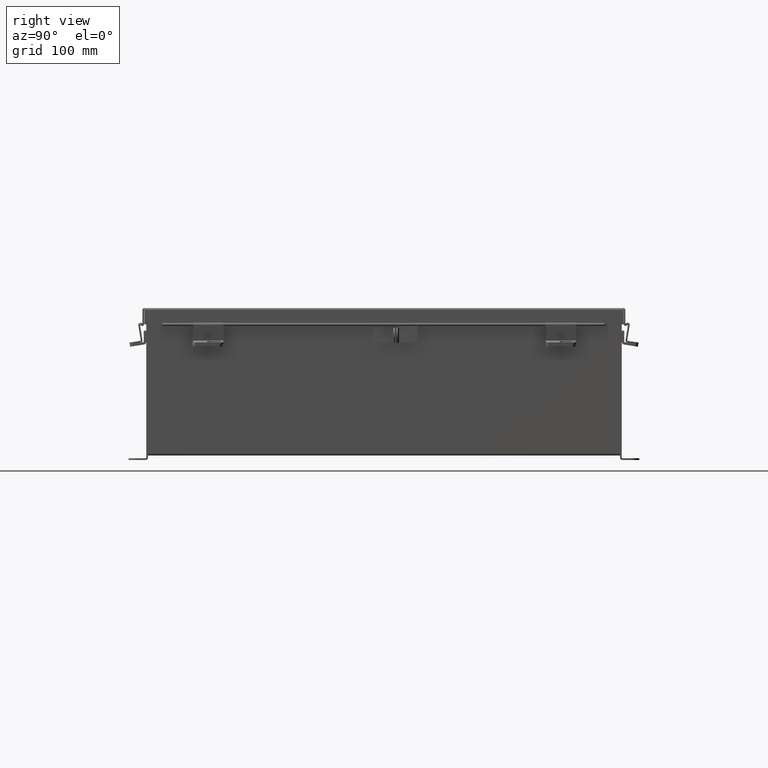
[diagram: clean part render]
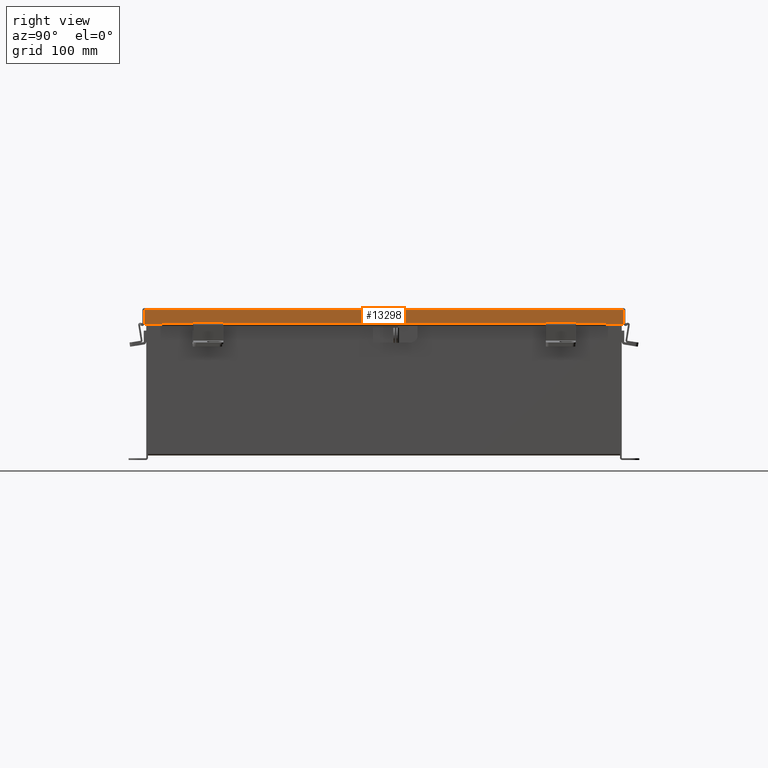
[diagram: same view with one face highlighted and labeled with its STEP entity id]
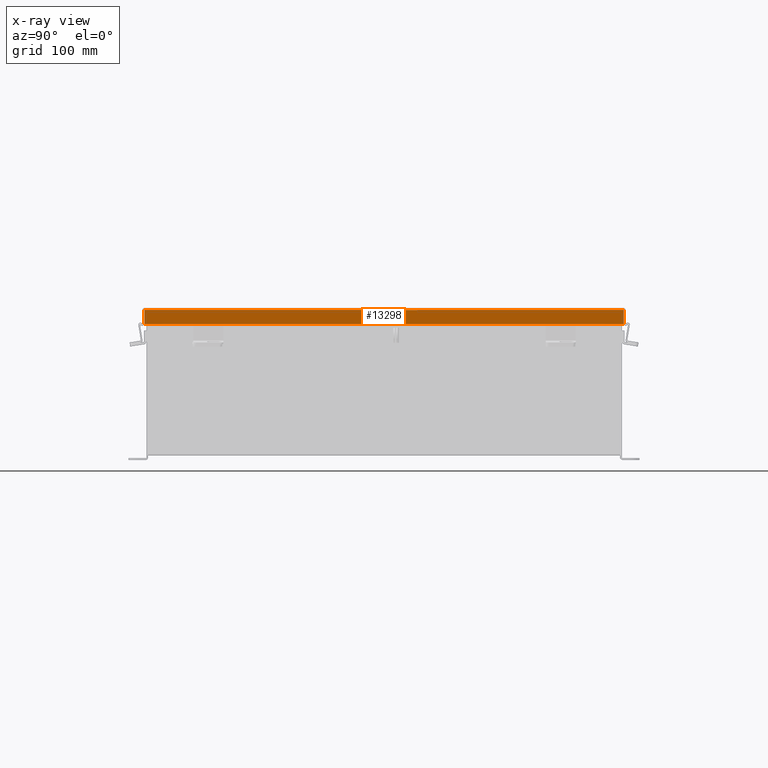
[diagram: x-ray of the same camera — body ghosted, the highlighted face saturated]
A machine part, right view. The second image highlights one B-rep face of the part: STEP entity #13298.
The next image is the same camera in x-ray: the body ghosted, the highlighted face saturated — about 0% of this face is hidden behind the body in this view.
In plain terms, the highlighted planar face has unit normal (-1, 0, -0).
Its self-contained STEP definition (entity closure, byte-faithful):
#420 = VERTEX_POINT ( 'NONE', #13137 ) ;
#1208 = VERTEX_POINT ( 'NONE', #22438 ) ;
#1387 = VECTOR ( 'NONE', #1497, 39.37007874015748100 ) ;
#1497 = DIRECTION ( 'NONE',  ( -1.401985044024173000E-013, -7.009925220120844800E-014, 1.000000000000000000 ) ) ;
#1678 = VECTOR ( 'NONE', #13972, 39.37007874015748100 ) ;
#1912 = CARTESIAN_POINT ( 'NONE',  ( -10.15625000000003000, 10.07447893218811800, 0.0000000000000000000 ) ) ;
#1918 = DIRECTION ( 'NONE',  ( -3.166671605124525800E-030, -1.000000000000000000, -1.853823127269377700E-029 ) ) ;
#2104 = PLANE ( 'NONE',  #15164 ) ;
#3303 = DIRECTION ( 'NONE',  ( 3.166671605124525800E-030, 1.000000000000000000, 1.853823127269377700E-029 ) ) ;
#3733 = CARTESIAN_POINT ( 'NONE',  ( -10.15625000000003400, -9.324478932188133800, 0.6123000000000005100 ) ) ;
#3745 = VERTEX_POINT ( 'NONE', #18820 ) ;
#4094 = VECTOR ( 'NONE', #3303, 39.37007874015748100 ) ;
#4202 = ORIENTED_EDGE ( 'NONE', *, *, #13214, .F. ) ;
#5016 = EDGE_CURVE ( 'NONE', #1208, #420, #17986, .T. ) ;
#5170 = VERTEX_POINT ( 'NONE', #17865 ) ;
#5282 = CARTESIAN_POINT ( 'NONE',  ( -10.15625000000003000, -10.07447893218814800, 0.01300000000000010700 ) ) ;
#5339 = DIRECTION ( 'NONE',  ( -3.569293475308537100E-015, 1.846427556282924300E-029, 1.000000000000000000 ) ) ;
#5529 = DIRECTION ( 'NONE',  ( 1.000000000000000000, 3.392644796219358600E-030, 3.569293475308537100E-015 ) ) ;
#5638 = VECTOR ( 'NONE', #5339, 39.37007874015748100 ) ;
#5728 = VECTOR ( 'NONE', #1918, 39.37007874015748100 ) ;
#5880 = CARTESIAN_POINT ( 'NONE',  ( -10.15625000000003400, -9.324478932188130300, 0.5967115427318793200 ) ) ;
#6111 = FACE_OUTER_BOUND ( 'NONE', #13912, .T. ) ;
#6167 = LINE ( 'NONE', #1912, #5638 ) ;
#7038 = EDGE_CURVE ( 'NONE', #3745, #17805, #21184, .T. ) ;
#7613 = VERTEX_POINT ( 'NONE', #5880 ) ;
#7762 = CARTESIAN_POINT ( 'NONE',  ( -10.15625000000003200, 0.0000000000000000000, 0.6123000000000005100 ) ) ;
#7808 = ORIENTED_EDGE ( 'NONE', *, *, #5016, .T. ) ;
#8040 = CARTESIAN_POINT ( 'NONE',  ( -10.15625000000003400, 9.324478932188135600, 0.5967115427318793200 ) ) ;
#8380 = VERTEX_POINT ( 'NONE', #5282 ) ;
#8701 = CARTESIAN_POINT ( 'NONE',  ( -10.15625000000003000, -10.07447893218814800, -3.606039351636827200E-014 ) ) ;
#9473 = EDGE_CURVE ( 'NONE', #8380, #3745, #15475, .T. ) ;
#9533 = DIRECTION ( 'NONE',  ( 3.166671605124525800E-030, 1.000000000000000000, 1.853823127269377700E-029 ) ) ;
#9799 = EDGE_CURVE ( 'NONE', #7613, #17805, #15198, .T. ) ;
#10890 = LINE ( 'NONE', #14002, #5728 ) ;
#10938 = ORIENTED_EDGE ( 'NONE', *, *, #7038, .T. ) ;
#11102 = ORIENTED_EDGE ( 'NONE', *, *, #11118, .F. ) ;
#11118 = EDGE_CURVE ( 'NONE', #5170, #420, #6167, .T. ) ;
#11828 = LINE ( 'NONE', #19205, #20527 ) ;
#12450 = CARTESIAN_POINT ( 'NONE',  ( -10.15625000000003200, 0.0000000000000000000, -3.606039351636827200E-014 ) ) ;
#13010 = ORIENTED_EDGE ( 'NONE', *, *, #15478, .F. ) ;
#13137 = CARTESIAN_POINT ( 'NONE',  ( -10.15625000000003400, 10.07447893218811800, 0.6122999999999994000 ) ) ;
#13214 = EDGE_CURVE ( 'NONE', #1208, #19880, #11828, .T. ) ;
#13298 = ADVANCED_FACE ( 'NONE', ( #6111 ), #2104, .F. ) ;
#13309 = ORIENTED_EDGE ( 'NONE', *, *, #14969, .F. ) ;
#13831 = ORIENTED_EDGE ( 'NONE', *, *, #9473, .T. ) ;
#13912 = EDGE_LOOP ( 'NONE', ( #4202, #7808, #11102, #13010, #13831, #10938, #16477, #13309 ) ) ;
#13972 = DIRECTION ( 'NONE',  ( -3.569293475308537100E-015, 1.846427556282924300E-029, 1.000000000000000000 ) ) ;
#14002 = CARTESIAN_POINT ( 'NONE',  ( -10.15625000000003000, 9.324478932188135600, 0.5967115427318793200 ) ) ;
#14409 = LINE ( 'NONE', #17076, #4094 ) ;
#14969 = EDGE_CURVE ( 'NONE', #19880, #7613, #10890, .T. ) ;
#15164 = AXIS2_PLACEMENT_3D ( 'NONE', #12450, #5529, #17669 ) ;
#15198 = LINE ( 'NONE', #22221, #1387 ) ;
#15475 = LINE ( 'NONE', #8701, #1678 ) ;
#15478 = EDGE_CURVE ( 'NONE', #8380, #5170, #14409, .T. ) ;
#16477 = ORIENTED_EDGE ( 'NONE', *, *, #9799, .F. ) ;
#16528 = CARTESIAN_POINT ( 'NONE',  ( -10.15625000000003200, 0.0000000000000000000, 0.6123000000000005100 ) ) ;
#16541 = VECTOR ( 'NONE', #9533, 39.37007874015748100 ) ;
#17076 = CARTESIAN_POINT ( 'NONE',  ( -10.15625000000003000, 10.15624999999998400, 0.01300000000000010700 ) ) ;
#17424 = VECTOR ( 'NONE', #21855, 39.37007874015748100 ) ;
#17669 = DIRECTION ( 'NONE',  ( 3.569293475308537100E-015, -1.846427556282924000E-029, -1.000000000000000000 ) ) ;
#17805 = VERTEX_POINT ( 'NONE', #3733 ) ;
#17865 = CARTESIAN_POINT ( 'NONE',  ( -10.15625000000003000, 10.07447893218811800, 0.01300000000000010700 ) ) ;
#17986 = LINE ( 'NONE', #16528, #17424 ) ;
#18820 = CARTESIAN_POINT ( 'NONE',  ( -10.15625000000003400, -10.07447893218814800, 0.6123000000000005100 ) ) ;
#19205 = CARTESIAN_POINT ( 'NONE',  ( -10.15625000000003400, 9.324478932188135600, 0.6122999999999994000 ) ) ;
#19880 = VERTEX_POINT ( 'NONE', #8040 ) ;
#20527 = VECTOR ( 'NONE', #20940, 39.37007874015748100 ) ;
#20940 = DIRECTION ( 'NONE',  ( 1.401985044024228000E-013, 7.009925220121121200E-014, -1.000000000000000000 ) ) ;
#21184 = LINE ( 'NONE', #7762, #16541 ) ;
#21855 = DIRECTION ( 'NONE',  ( 3.166671605124525800E-030, 1.000000000000000000, 1.853823127269377700E-029 ) ) ;
#22221 = CARTESIAN_POINT ( 'NONE',  ( -10.15625000000003000, -9.324478932188130300, 0.5967115427318793200 ) ) ;
#22438 = CARTESIAN_POINT ( 'NONE',  ( -10.15625000000003400, 9.324478932188135600, 0.6122999999999994000 ) ) ;